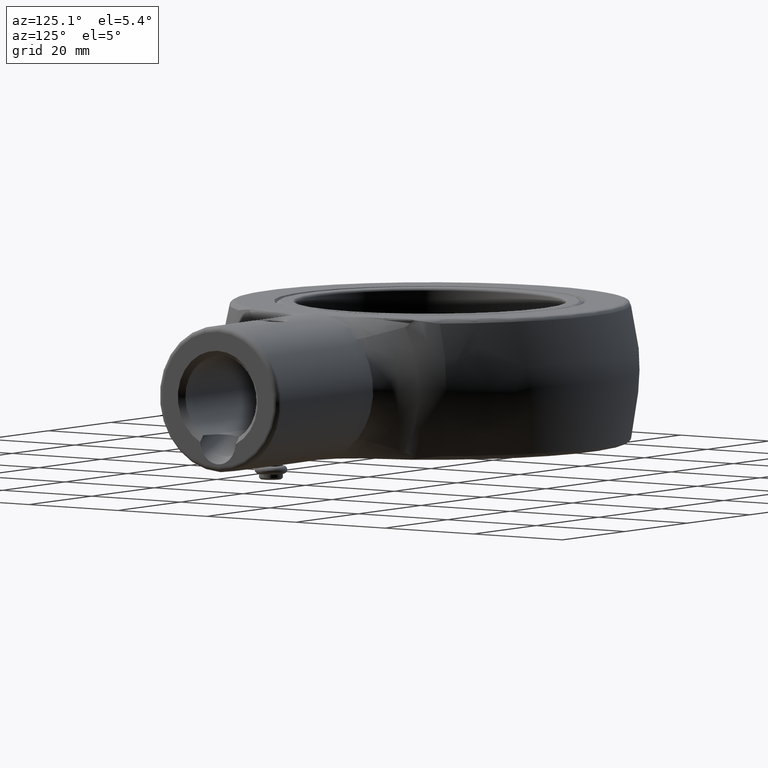
[diagram: clean part render]
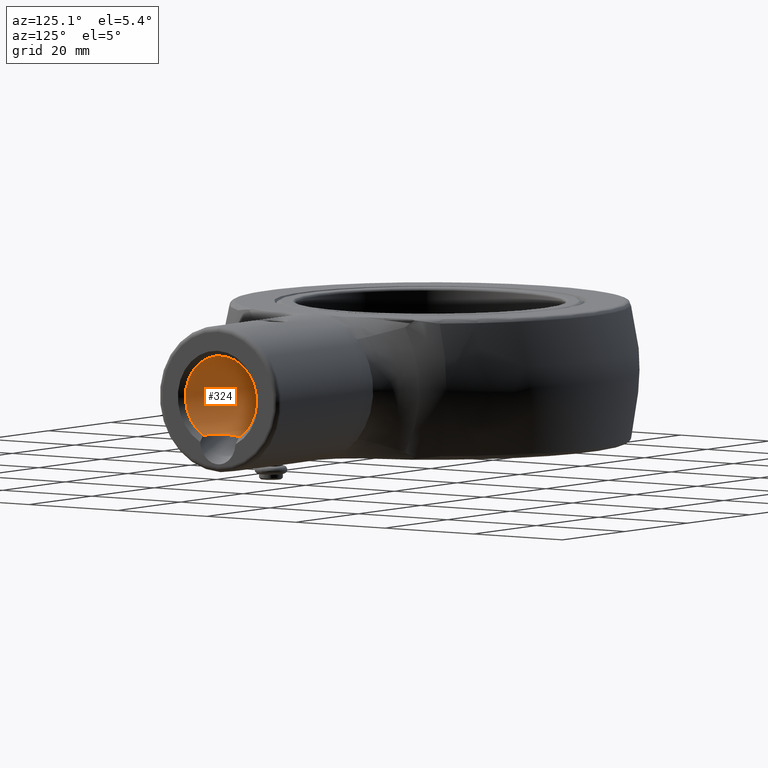
[diagram: same view with one face highlighted and labeled with its STEP entity id]
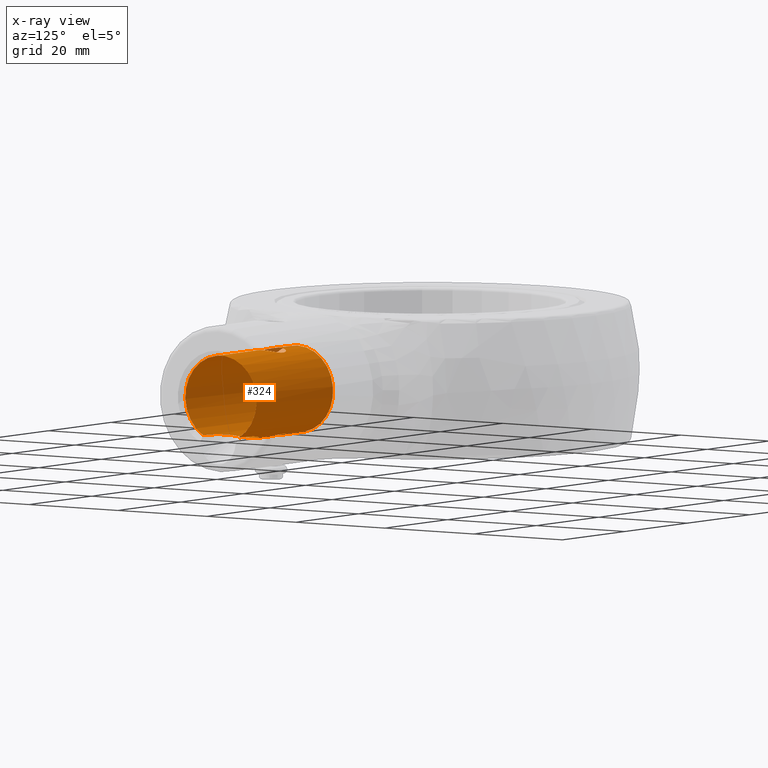
[diagram: x-ray of the same camera — body ghosted, the highlighted face saturated]
A machine part, auxiliary view. The second image highlights one B-rep face of the part: STEP entity #324.
The next image is the same camera in x-ray: the body ghosted, the highlighted face saturated — about 1% of this face is hidden behind the body in this view.
In plain terms, the highlighted cylindrical surface (bore or boss wall) has radius 8 mm, axis along (1, 0, 0).
Its self-contained STEP definition (entity closure, byte-faithful):
#324 = ADVANCED_FACE( '', ( #691, #692, #693, #694 ), #695, .F. );
#691 = FACE_OUTER_BOUND( '', #1259, .T. );
#692 = FACE_BOUND( '', #1260, .T. );
#693 = FACE_BOUND( '', #1261, .T. );
#694 = FACE_OUTER_BOUND( '', #1262, .T. );
#695 = CYLINDRICAL_SURFACE( '', #1263, 8.00000000000000 );
#1259 = EDGE_LOOP( '', ( #3522, #3523, #3524, #3525 ) );
#1260 = EDGE_LOOP( '', ( #3526 ) );
#1261 = EDGE_LOOP( '', ( #3527 ) );
#1262 = EDGE_LOOP( '', ( #3528 ) );
#1263 = AXIS2_PLACEMENT_3D( '', #3529, #3530, #3531 );
#3522 = ORIENTED_EDGE( '', *, *, #4617, .T. );
#3523 = ORIENTED_EDGE( '', *, *, #4603, .T. );
#3524 = ORIENTED_EDGE( '', *, *, #4439, .T. );
#3525 = ORIENTED_EDGE( '', *, *, #4555, .T. );
#3526 = ORIENTED_EDGE( '', *, *, #4512, .T. );
#3527 = ORIENTED_EDGE( '', *, *, #4618, .T. );
#3528 = ORIENTED_EDGE( '', *, *, #4590, .T. );
#3529 = CARTESIAN_POINT( '', ( 68.0000000000000, 0.000000000000000, 3.67273485929464E-015 ) );
#3530 = DIRECTION( '', ( 1.00000000000000, -0.000000000000000, -0.000000000000000 ) );
#3531 = DIRECTION( '', ( 0.000000000000000, 0.000000000000000, -1.00000000000000 ) );
#4439 = EDGE_CURVE( '', #4850, #4858, #4860, .F. );
#4512 = EDGE_CURVE( '', #4986, #4986, #4987, .T. );
#4555 = EDGE_CURVE( '', #4858, #5054, #5056, .T. );
#4590 = EDGE_CURVE( '', #5112, #5112, #5113, .T. );
#4603 = EDGE_CURVE( '', #5131, #4850, #5132, .F. );
#4617 = EDGE_CURVE( '', #5054, #5131, #5152, .T. );
#4618 = EDGE_CURVE( '', #5153, #5153, #5154, .T. );
#4850 = VERTEX_POINT( '', #5577 );
#4858 = VERTEX_POINT( '', #5594 );
#4860 = CIRCLE( '', #5599, 8.00000000000000 );
#4986 = VERTEX_POINT( '', #5792 );
#4987 = B_SPLINE_CURVE_WITH_KNOTS( '', 3, ( #5793, #5794, #5795, #5796, #5797, #5798, #5799, #5800, #5801, #5802, #5803, #5804, #5805, #5806, #5807, #5808, #5809, #5810, #5811, #5812, #5813, #5814, #5815, #5816, #5817, #5818, #5819, #5820, #5821, #5822, #5823, #5824, #5825, #5826, #5827, #5828, #5829, #5830, #5831, #5832, #5833, #5834, #5835, #5836, #5837, #5838, #5839, #5840, #5841, #5842, #5843, #5844, #5845, #5846, #5847, #5848, #5849, #5850, #5851, #5852, #5853, #5854 ), .UNSPECIFIED., .T., .F., ( 2, 2, 2, 2, 2, 2, 2, 2, 2, 2, 2, 2, 2, 2, 2, 2, 2, 2, 2, 2, 2, 2, 2, 2, 2, 2, 2, 2, 2, 2, 2, 2, 2 ), ( -0.000541455755861218, 0.000000000000000, 0.000541455755861203, 0.00108291151172241, 0.00162436726758361, 0.00216582302344481, 0.00324873453516723, 0.00379019029102845, 0.00433164604688967, 0.00487310180275089, 0.00541455755861211, 0.00595601331447333, 0.00649746907033455, 0.00703892482619577, 0.00758038058205699, 0.00812183633791821, 0.00866329209377943, 0.00920474784964065, 0.00974620360550186, 0.0102876593613631, 0.0108291151172243, 0.0119120266289467, 0.0124534823848080, 0.0129949381406692, 0.0135363938965304, 0.0140778496523916, 0.0146193054082528, 0.0151607611641141, 0.0157022169199753, 0.0162436726758365, 0.0167851284316977, 0.0173265841875589, 0.0178680399434201 ), .UNSPECIFIED. );
#5054 = VERTEX_POINT( '', #6075 );
#5056 = LINE( '', #6078, #6079 );
#5112 = VERTEX_POINT( '', #6321 );
#5113 = CIRCLE( '', #6322, 8.00000000000000 );
#5131 = VERTEX_POINT( '', #6386 );
#5132 = LINE( '', #6387, #6388 );
#5152 = B_SPLINE_CURVE_WITH_KNOTS( '', 3, ( #6521, #6522, #6523, #6524, #6525, #6526, #6527, #6528, #6529, #6530, #6531, #6532, #6533, #6534, #6535, #6536, #6537, #6538, #6539, #6540, #6541, #6542, #6543, #6544, #6545, #6546, #6547, #6548, #6549, #6550, #6551, #6552, #6553, #6554, #6555, #6556, #6557, #6558, #6559, #6560, #6561, #6562 ), .UNSPECIFIED., .F., .F., ( 4, 2, 2, 2, 2, 2, 2, 2, 2, 2, 2, 2, 2, 2, 2, 2, 2, 2, 2, 2, 4 ), ( 0.000000000000000, 0.00264265898961198, 0.00396398848441800, 0.00528531797922401, 0.00594598272662700, 0.00660664747403000, 0.00792797696883600, 0.00858864171623899, 0.00924930646364199, 0.00990997121104499, 0.0105706359584480, 0.0112313007058510, 0.0118919654532540, 0.0125526302006570, 0.0132132949480600, 0.0145346244428660, 0.0151952891902690, 0.0158559539376720, 0.0171772834324780, 0.0184986129272841, 0.0211412719168962 ), .UNSPECIFIED. );
#5153 = VERTEX_POINT( '', #6563 );
#5154 = B_SPLINE_CURVE_WITH_KNOTS( '', 3, ( #6564, #6565, #6566, #6567, #6568, #6569, #6570, #6571, #6572, #6573, #6574, #6575, #6576, #6577, #6578, #6579, #6580, #6581, #6582, #6583, #6584, #6585, #6586, #6587, #6588, #6589, #6590, #6591, #6592, #6593, #6594, #6595, #6596, #6597, #6598, #6599, #6600, #6601, #6602, #6603, #6604, #6605, #6606, #6607, #6608, #6609, #6610, #6611, #6612, #6613, #6614, #6615, #6616, #6617, #6618, #6619, #6620, #6621, #6622, #6623, #6624, #6625 ), .UNSPECIFIED., .T., .F., ( 2, 2, 2, 2, 2, 2, 2, 2, 2, 2, 2, 2, 2, 2, 2, 2, 2, 2, 2, 2, 2, 2, 2, 2, 2, 2, 2, 2, 2, 2, 2, 2, 2 ), ( -0.000541437769566834, 0.000000000000000, 0.000541437769566838, 0.00108287553913368, 0.00162431330870052, 0.00216575107826735, 0.00324862661740103, 0.00379006438696787, 0.00433150215653471, 0.00487293992610155, 0.00541437769566839, 0.00595581546523522, 0.00649725323480206, 0.00703869100436890, 0.00758012877393574, 0.00812156654350258, 0.00866300431306942, 0.00920444208263626, 0.00974587985220310, 0.0102873176217699, 0.0108287553913368, 0.0119116309304705, 0.0124530687000373, 0.0129945064696041, 0.0135359442391710, 0.0140773820087378, 0.0146188197783046, 0.0151602575478715, 0.0157016953174383, 0.0162431330870051, 0.0167845708565720, 0.0173260086261388, 0.0178674463957056 ), .UNSPECIFIED. );
#5577 = CARTESIAN_POINT( '', ( 67.0000000000000, 4.00000000000000, -6.92820323027551 ) );
#5594 = CARTESIAN_POINT( '', ( 67.0000000000000, -4.00000000000000, -6.92820323027551 ) );
#5599 = AXIS2_PLACEMENT_3D( '', #7934, #7935, #7936 );
#5792 = CARTESIAN_POINT( '', ( 53.7500000000000, 0.000000000000000, -8.00000000000000 ) );
#5793 = CARTESIAN_POINT( '', ( 53.7500000000000, 0.183183498873040, -8.00000000000000 ) );
#5794 = CARTESIAN_POINT( '', ( 53.7500000000000, -0.183183498873035, -8.00000000000000 ) );
#5795 = CARTESIAN_POINT( '', ( 53.7318817563573, -0.363039030797376, -7.99372064181659 ) );
#5796 = CARTESIAN_POINT( '', ( 53.6611424795396, -0.716446768566967, -7.96982252406519 ) );
#5797 = CARTESIAN_POINT( '', ( 53.6075825627138, -0.891878536847658, -7.95189770384600 ) );
#5798 = CARTESIAN_POINT( '', ( 53.4689935632696, -1.22433856853064, -7.90753561399056 ) );
#5799 = CARTESIAN_POINT( '', ( 53.3843904451280, -1.38178410745083, -7.88122459836018 ) );
#5800 = CARTESIAN_POINT( '', ( 53.1847935131393, -1.67967926086073, -7.82315192681541 ) );
#5801 = CARTESIAN_POINT( '', ( 53.0696570007556, -1.81952441684223, -7.79141433421029 ) );
#5802 = CARTESIAN_POINT( '', ( 52.6921278105476, -2.19677042264732, -7.69684516106909 ) );
#5803 = CARTESIAN_POINT( '', ( 52.3878707318571, -2.40089523089465, -7.63261108979675 ) );
#5804 = CARTESIAN_POINT( '', ( 51.8925241385491, -2.60727759005955, -7.56355512030080 ) );
#5805 = CARTESIAN_POINT( '', ( 51.7178181352563, -2.66084908005479, -7.54462143537327 ) );
#5806 = CARTESIAN_POINT( '', ( 51.3622184739430, -2.73206487464439, -7.51912574377212 ) );
#5807 = CARTESIAN_POINT( '', ( 51.1828584083179, -2.74987189559744, -7.51253649416863 ) );
#5808 = CARTESIAN_POINT( '', ( 50.8210152187854, -2.75012674031267, -7.51244320648278 ) );
#5809 = CARTESIAN_POINT( '', ( 50.6372300824896, -2.73193462298164, -7.51917206631513 ) );
#5810 = CARTESIAN_POINT( '', ( 50.2833134190023, -2.66109547778996, -7.54453353131825 ) );
#5811 = CARTESIAN_POINT( '', ( 50.1111733489395, -2.60870482767594, -7.56307134135923 ) );
#5812 = CARTESIAN_POINT( '', ( 49.7764641835588, -2.46947642213097, -7.60966984782969 ) );
#5813 = CARTESIAN_POINT( '', ( 49.6180962361418, -2.38425246667819, -7.63715035872349 ) );
#5814 = CARTESIAN_POINT( '', ( 49.3216680922070, -2.18575383900164, -7.69631116716969 ) );
#5815 = CARTESIAN_POINT( '', ( 49.1816963493124, -2.07080799110682, -7.72843762570703 ) );
#5816 = CARTESIAN_POINT( '', ( 48.9288416828983, -1.81790459805688, -7.79180445999768 ) );
#5817 = CARTESIAN_POINT( '', ( 48.8159017661057, -1.68053414828790, -7.82295975567239 ) );
#5818 = CARTESIAN_POINT( '', ( 48.6166494393503, -1.38351733777080, -7.88091201184984 ) );
#5819 = CARTESIAN_POINT( '', ( 48.5302449788667, -1.22268246412678, -7.90777633541032 ) );
#5820 = CARTESIAN_POINT( '', ( 48.3924024583856, -0.891671090404326, -7.95190553549875 ) );
#5821 = CARTESIAN_POINT( '', ( 48.3397201703537, -0.720019450469932, -7.96953280274091 ) );
#5822 = CARTESIAN_POINT( '', ( 48.2681115744523, -0.363733984439829, -7.99372120426913 ) );
#5823 = CARTESIAN_POINT( '', ( 48.2500702115301, -0.181507945997113, -7.99997586478813 ) );
#5824 = CARTESIAN_POINT( '', ( 48.2499302023883, 0.179374145958412, -8.00002399292741 ) );
#5825 = CARTESIAN_POINT( '', ( 48.2677716382438, 0.361284209839775, -7.99383779037683 ) );
#5826 = CARTESIAN_POINT( '', ( 48.3391771047661, 0.718066585536309, -7.96971450416341 ) );
#5827 = CARTESIAN_POINT( '', ( 48.3918354592703, 0.890116526505003, -7.95209046323342 ) );
#5828 = CARTESIAN_POINT( '', ( 48.5299427336291, 1.22214843743532, -7.90786971080579 ) );
#5829 = CARTESIAN_POINT( '', ( 48.6163527661474, 1.38298794890012, -7.88100312685342 ) );
#5830 = CARTESIAN_POINT( '', ( 48.8153678035381, 1.67982498149014, -7.82311025001169 ) );
#5831 = CARTESIAN_POINT( '', ( 48.9284375792368, 1.81752610495996, -7.79190271469428 ) );
#5832 = CARTESIAN_POINT( '', ( 49.3095221227584, 2.19860696075354, -7.69640979041594 ) );
#5833 = CARTESIAN_POINT( '', ( 49.6093819990401, 2.39988666735283, -7.63295603621383 ) );
#5834 = CARTESIAN_POINT( '', ( 50.1101738331326, 2.60833337649561, -7.56319809761629 ) );
#5835 = CARTESIAN_POINT( '', ( 50.2819082035124, 2.66069187715850, -7.54467611359493 ) );
#5836 = CARTESIAN_POINT( '', ( 50.6350616187956, 2.73162169256355, -7.51928599355972 ) );
#5837 = CARTESIAN_POINT( '', ( 50.8187492710485, 2.74999892462521, -7.51248999430691 ) );
#5838 = CARTESIAN_POINT( '', ( 51.1812180955513, 2.75000107527798, -7.51248920704524 ) );
#5839 = CARTESIAN_POINT( '', ( 51.3607757646644, 2.73226058383270, -7.51905423221506 ) );
#5840 = CARTESIAN_POINT( '', ( 51.7165535914698, 2.66119484459270, -7.54449908503344 ) );
#5841 = CARTESIAN_POINT( '', ( 51.8914086571660, 2.60769060037717, -7.56341408106457 ) );
#5842 = CARTESIAN_POINT( '', ( 52.2225210650154, 2.46983843742046, -7.60954538208306 ) );
#5843 = CARTESIAN_POINT( '', ( 52.3818435310315, 2.38439983465085, -7.63711720177098 ) );
#5844 = CARTESIAN_POINT( '', ( 52.6806599495306, 2.18408705178621, -7.69679709199151 ) );
#5845 = CARTESIAN_POINT( '', ( 52.8181236370631, 2.07091837575338, -7.72840069454229 ) );
#5846 = CARTESIAN_POINT( '', ( 53.0702659730538, 1.81886648204209, -7.79157268688027 ) );
#5847 = CARTESIAN_POINT( '', ( 53.1856951387957, 1.67844112056118, -7.82340831460299 ) );
#5848 = CARTESIAN_POINT( '', ( 53.3845166460170, 1.38148767631627, -7.88126728720554 ) );
#5849 = CARTESIAN_POINT( '', ( 53.4690515530150, 1.22424976131274, -7.90755328484336 ) );
#5850 = CARTESIAN_POINT( '', ( 53.6077519243192, 0.891421870232992, -7.95195280921495 ) );
#5851 = CARTESIAN_POINT( '', ( 53.6612035747564, 0.716180492579420, -7.96984307423852 ) );
#5852 = CARTESIAN_POINT( '', ( 53.7318665051741, 0.363076248403894, -7.99371557936507 ) );
#5853 = CARTESIAN_POINT( '', ( 53.7500000000000, 0.183183498873040, -8.00000000000000 ) );
#5854 = CARTESIAN_POINT( '', ( 53.7500000000000, -0.183183498873035, -8.00000000000000 ) );
#6075 = CARTESIAN_POINT( '', ( 65.7696067059958, -4.00000000000000, -6.92820323027551 ) );
#6078 = CARTESIAN_POINT( '', ( 68.0000000000000, -4.00000000000000, -6.92820323027551 ) );
#6079 = VECTOR( '', #8004, 1000.00000000000 );
#6321 = CARTESIAN_POINT( '', ( 42.5000000000000, 0.000000000000000, 8.00000000000000 ) );
#6322 = AXIS2_PLACEMENT_3D( '', #8012, #8013, #8014 );
#6386 = CARTESIAN_POINT( '', ( 65.7696067059958, 4.00000000000000, -6.92820323027551 ) );
#6387 = CARTESIAN_POINT( '', ( 68.0000000000000, 4.00000000000000, -6.92820323027551 ) );
#6388 = VECTOR( '', #8019, 1000.00000000000 );
#6521 = CARTESIAN_POINT( '', ( 65.7696067059958, -4.00000000000000, -6.92820323027551 ) );
#6522 = CARTESIAN_POINT( '', ( 64.8842861157169, -4.00000000000001, -6.92820323027550 ) );
#6523 = CARTESIAN_POINT( '', ( 64.0028062951544, -3.96712059337174, -6.94777396570291 ) );
#6524 = CARTESIAN_POINT( '', ( 62.6895964861945, -3.83854868619721, -7.01911292143865 ) );
#6525 = CARTESIAN_POINT( '', ( 62.2533838027106, -3.78225968573239, -7.04994341662600 ) );
#6526 = CARTESIAN_POINT( '', ( 61.3850997444337, -3.63197341293456, -7.12853138000256 ) );
#6527 = CARTESIAN_POINT( '', ( 60.9519977067740, -3.53768564082012, -7.17652407146705 ) );
#6528 = CARTESIAN_POINT( '', ( 60.3186739432842, -3.35715819708139, -7.26181232201521 ) );
#6529 = CARTESIAN_POINT( '', ( 60.1099195857097, -3.29035886293787, -7.29247894611803 ) );
#6530 = CARTESIAN_POINT( '', ( 59.6981010518759, -3.14033750502687, -7.35832800172771 ) );
#6531 = CARTESIAN_POINT( '', ( 59.4941465827943, -3.05669094899072, -7.39368837720237 ) );
#6532 = CARTESIAN_POINT( '', ( 58.9009399398692, -2.77821512906985, -7.50476316774118 ) );
#6533 = CARTESIAN_POINT( '', ( 58.5296837657782, -2.55734516815804, -7.58572181489016 ) );
#6534 = CARTESIAN_POINT( '', ( 58.0269855812569, -2.14266258791558, -7.70907221881125 ) );
#6535 = CARTESIAN_POINT( '', ( 57.8673378934484, -1.98854305517763, -7.75080137052656 ) );
#6536 = CARTESIAN_POINT( '', ( 57.5832126533756, -1.65562078385178, -7.82867454858928 ) );
#6537 = CARTESIAN_POINT( '', ( 57.4575007141909, -1.47634179547753, -7.86508095554304 ) );
#6538 = CARTESIAN_POINT( '', ( 57.2456473108766, -1.08605409561138, -7.92840274177121 ) );
#6539 = CARTESIAN_POINT( '', ( 57.1630942565275, -0.881082664127801, -7.95420149761570 ) );
#6540 = CARTESIAN_POINT( '', ( 57.0502338048803, -0.455360765308113, -7.98988577509820 ) );
#6541 = CARTESIAN_POINT( '', ( 57.0198169505644, -0.229932691175481, -7.99977729321978 ) );
#6542 = CARTESIAN_POINT( '', ( 57.0184601917464, 0.214165206603526, -8.00021493760427 ) );
#6543 = CARTESIAN_POINT( '', ( 57.0464647412299, 0.435490173076527, -7.99109516711024 ) );
#6544 = CARTESIAN_POINT( '', ( 57.1584470215487, 0.868801376093193, -7.95565445639499 ) );
#6545 = CARTESIAN_POINT( '', ( 57.2403047108108, 1.07396563541548, -7.93004816908578 ) );
#6546 = CARTESIAN_POINT( '', ( 57.4497982499607, 1.46426293143922, -7.86733755584995 ) );
#6547 = CARTESIAN_POINT( '', ( 57.5762623762768, 1.64622110364035, -7.83065415925374 ) );
#6548 = CARTESIAN_POINT( '', ( 57.8582046210209, 1.97902745588875, -7.75323408731784 ) );
#6549 = CARTESIAN_POINT( '', ( 58.0155601400568, 2.13232373101013, -7.71197771012738 ) );
#6550 = CARTESIAN_POINT( '', ( 58.5224802755216, 2.55315184264597, -7.58729427725824 ) );
#6551 = CARTESIAN_POINT( '', ( 58.8956281949038, 2.77533585676592, -7.50584695496394 ) );
#6552 = CARTESIAN_POINT( '', ( 59.4897416059900, 3.05481251328807, -7.39446938028393 ) );
#6553 = CARTESIAN_POINT( '', ( 59.6942115571012, 3.13880273034250, -7.35898422814262 ) );
#6554 = CARTESIAN_POINT( '', ( 60.1060623391820, 3.28906938179212, -7.29306204908576 ) );
#6555 = CARTESIAN_POINT( '', ( 60.3143051571191, 3.35578789635909, -7.26244404122873 ) );
#6556 = CARTESIAN_POINT( '', ( 60.9447103320316, 3.53585366465168, -7.17742030896092 ) );
#6557 = CARTESIAN_POINT( '', ( 61.3724864306049, 3.62937618743206, -7.12985703165481 ) );
#6558 = CARTESIAN_POINT( '', ( 62.2387615807870, 3.78013006211755, -7.05108853406419 ) );
#6559 = CARTESIAN_POINT( '', ( 62.6783665763621, 3.83726057315865, -7.01982057419062 ) );
#6560 = CARTESIAN_POINT( '', ( 63.9988318928385, 3.96710312850711, -6.94779757681385 ) );
#6561 = CARTESIAN_POINT( '', ( 64.8830023455098, 4.00000000000005, -6.92820323027565 ) );
#6562 = CARTESIAN_POINT( '', ( 65.7696067059958, 4.00000000000005, -6.92820323027565 ) );
#6563 = CARTESIAN_POINT( '', ( 51.0000000000000, -2.75000000000000, 7.51248960065836 ) );
#6564 = CARTESIAN_POINT( '', ( 50.8168020033827, -2.75000000000000, 7.51248960065836 ) );
#6565 = CARTESIAN_POINT( '', ( 51.1831979966172, -2.75000000000000, 7.51248960065836 ) );
#6566 = CARTESIAN_POINT( '', ( 51.3630301942930, -2.73187960517058, 7.51919171806100 ) );
#6567 = CARTESIAN_POINT( '', ( 51.7163405632221, -2.66116765661205, 7.54450773566480 ) );
#6568 = CARTESIAN_POINT( '', ( 51.8916902435879, -2.60763843220239, 7.56343511973411 ) );
#6569 = CARTESIAN_POINT( '', ( 52.2239383731409, -2.46918297061237, 7.60976113036172 ) );
#6570 = CARTESIAN_POINT( '', ( 52.3812953231199, -2.38466787799521, 7.63702735055511 ) );
#6571 = CARTESIAN_POINT( '', ( 52.6791094394105, -2.18522519400124, 7.69646792320810 ) );
#6572 = CARTESIAN_POINT( '', ( 52.8188983888804, -2.07020580568613, 7.72858753132302 ) );
#6573 = CARTESIAN_POINT( '', ( 53.1962262063376, -1.69282726775924, 7.82314547163760 ) );
#6574 = CARTESIAN_POINT( '', ( 53.4006452127230, -1.38836623427568, 7.88565623571626 ) );
#6575 = CARTESIAN_POINT( '', ( 53.6072244166496, -0.892703982677224, 7.95178365943165 ) );
#6576 = CARTESIAN_POINT( '', ( 53.6608332578833, -0.717887717303856, 7.96971829850205 ) );
#6577 = CARTESIAN_POINT( '', ( 53.7320696795099, -0.362203902817356, 7.99378388905517 ) );
#6578 = CARTESIAN_POINT( '', ( 53.7498787497331, -0.182798990302139, 7.99995832022891 ) );
#6579 = CARTESIAN_POINT( '', ( 53.7501200281386, 0.179132464730298, 8.00004125966454 ) );
#6580 = CARTESIAN_POINT( '', ( 53.7319194545912, 0.362894924402380, 7.99373327544825 ) );
#6581 = CARTESIAN_POINT( '', ( 53.6610528348691, 0.716850362743620, 7.96979234124704 ) );
#6582 = CARTESIAN_POINT( '', ( 53.6086324930994, 0.889060626192720, 7.95223907810831 ) );
#6583 = CARTESIAN_POINT( '', ( 53.4692796973338, 1.22394855179248, 7.90762196206952 ) );
#6584 = CARTESIAN_POINT( '', ( 53.3839426497566, 1.38244881827613, 7.88109451236081 ) );
#6585 = CARTESIAN_POINT( '', ( 53.1852758386658, 1.67896301371569, 7.82329205938852 ) );
#6586 = CARTESIAN_POINT( '', ( 53.0702710894091, 1.81891833363306, 7.79156727329849 ) );
#6587 = CARTESIAN_POINT( '', ( 52.8172406587847, 2.07174387319694, 7.72818619099162 ) );
#6588 = CARTESIAN_POINT( '', ( 52.6798647386606, 2.18460435494709, 7.69664138379845 ) );
#6589 = CARTESIAN_POINT( '', ( 52.3829733751180, 2.38365819100892, 7.63733974672390 ) );
#6590 = CARTESIAN_POINT( '', ( 52.2222587416847, 2.46995563222344, 7.60950660232661 ) );
#6591 = CARTESIAN_POINT( '', ( 51.8914620795806, 2.60766037233512, 7.56342375770111 ) );
#6592 = CARTESIAN_POINT( '', ( 51.7199221498920, 2.66030063883515, 7.54481579156112 ) );
#6593 = CARTESIAN_POINT( '', ( 51.3637948103671, 2.73187494714560, 7.51919570770272 ) );
#6594 = CARTESIAN_POINT( '', ( 51.1815186217460, 2.74992743155322, 7.51251616484961 ) );
#6595 = CARTESIAN_POINT( '', ( 50.8206868957831, 2.75007212623698, 7.51246319834114 ) );
#6596 = CARTESIAN_POINT( '', ( 50.6388589253192, 2.73224665661739, 7.51906013607761 ) );
#6597 = CARTESIAN_POINT( '', ( 50.2820910695165, 2.66086479099382, 7.54461633793248 ) );
#6598 = CARTESIAN_POINT( '', ( 50.1101040998214, 2.60823345908346, 7.56322764488973 ) );
#6599 = CARTESIAN_POINT( '', ( 49.7782265911269, 2.47023606718223, 7.60941705769231 ) );
#6600 = CARTESIAN_POINT( '', ( 49.6175179518843, 2.38393249685886, 7.63725248585923 ) );
#6601 = CARTESIAN_POINT( '', ( 49.3208126660492, 2.18511342049816, 7.69649524276482 ) );
#6602 = CARTESIAN_POINT( '', ( 49.1831107684630, 2.07212374582416, 7.72809478534746 ) );
#6603 = CARTESIAN_POINT( '', ( 48.8018501878650, 1.69108562590550, 7.82360612014353 ) );
#6604 = CARTESIAN_POINT( '', ( 48.6003774527496, 1.39113851401410, 7.88532323604647 ) );
#6605 = CARTESIAN_POINT( '', ( 48.3917264501478, 0.890026838220687, 7.95212232380601 ) );
#6606 = CARTESIAN_POINT( '', ( 48.3393273275931, 0.718184013605260, 7.96966522170115 ) );
#6607 = CARTESIAN_POINT( '', ( 48.2683631287434, 0.364866209291006, 7.99363651116992 ) );
#6608 = CARTESIAN_POINT( '', ( 48.2499966127847, 0.181169186215199, 8.00000116435526 ) );
#6609 = CARTESIAN_POINT( '', ( 48.2500033881763, -0.181272001940665, 7.99999883531440 ) );
#6610 = CARTESIAN_POINT( '', ( 48.2677457850755, -0.360856468719230, 7.99384721153555 ) );
#6611 = CARTESIAN_POINT( '', ( 48.3388555876661, -0.716757213212923, 7.96982244028677 ) );
#6612 = CARTESIAN_POINT( '', ( 48.3923926923650, -0.891670148782398, 7.95190826389830 ) );
#6613 = CARTESIAN_POINT( '', ( 48.5303567654388, -1.22292837854358, 7.90774094622709 ) );
#6614 = CARTESIAN_POINT( '', ( 48.6158523019328, -1.38229745378681, 7.88114561085680 ) );
#6615 = CARTESIAN_POINT( '', ( 48.8163992643547, -1.68130732593242, 7.82281330890868 ) );
#6616 = CARTESIAN_POINT( '', ( 48.9296647564240, -1.81878651201879, 7.79159130191964 ) );
#6617 = CARTESIAN_POINT( '', ( 49.1817801774020, -2.07083294203232, 7.72842353385508 ) );
#6618 = CARTESIAN_POINT( '', ( 49.3221764127368, -2.18616213485330, 7.69619629578810 ) );
#6619 = CARTESIAN_POINT( '', ( 49.6190354060486, -2.38481312896752, 7.63697640713083 ) );
#6620 = CARTESIAN_POINT( '', ( 49.7761783605730, -2.46925427541785, 7.60973851925159 ) );
#6621 = CARTESIAN_POINT( '', ( 50.1087829696408, -2.60781293167223, 7.56337548462681 ) );
#6622 = CARTESIAN_POINT( '', ( 50.2839424991906, -2.66123288274249, 7.54448451698353 ) );
#6623 = CARTESIAN_POINT( '', ( 50.6369387233217, -2.73186480449382, 7.51919688352168 ) );
#6624 = CARTESIAN_POINT( '', ( 50.8168020033827, -2.75000000000000, 7.51248960065836 ) );
#6625 = CARTESIAN_POINT( '', ( 51.1831979966172, -2.75000000000000, 7.51248960065836 ) );
#7934 = CARTESIAN_POINT( '', ( 67.0000000000000, 0.000000000000000, 3.67273485929464E-015 ) );
#7935 = DIRECTION( '', ( -1.00000000000000, 0.000000000000000, 0.000000000000000 ) );
#7936 = DIRECTION( '', ( 0.000000000000000, 0.000000000000000, 1.00000000000000 ) );
#8004 = DIRECTION( '', ( -1.00000000000000, 0.000000000000000, 0.000000000000000 ) );
#8012 = CARTESIAN_POINT( '', ( 42.5000000000000, 0.000000000000000, 3.67273485929464E-015 ) );
#8013 = DIRECTION( '', ( -1.00000000000000, 0.000000000000000, 0.000000000000000 ) );
#8014 = DIRECTION( '', ( 0.000000000000000, 0.000000000000000, 1.00000000000000 ) );
#8019 = DIRECTION( '', ( -1.00000000000000, 0.000000000000000, 0.000000000000000 ) );